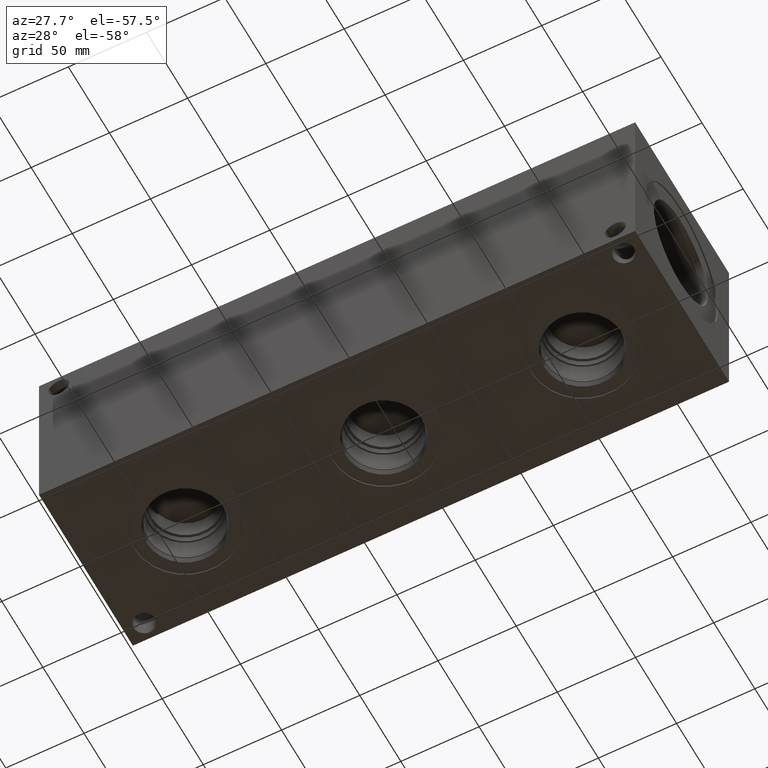
[diagram: clean part render]
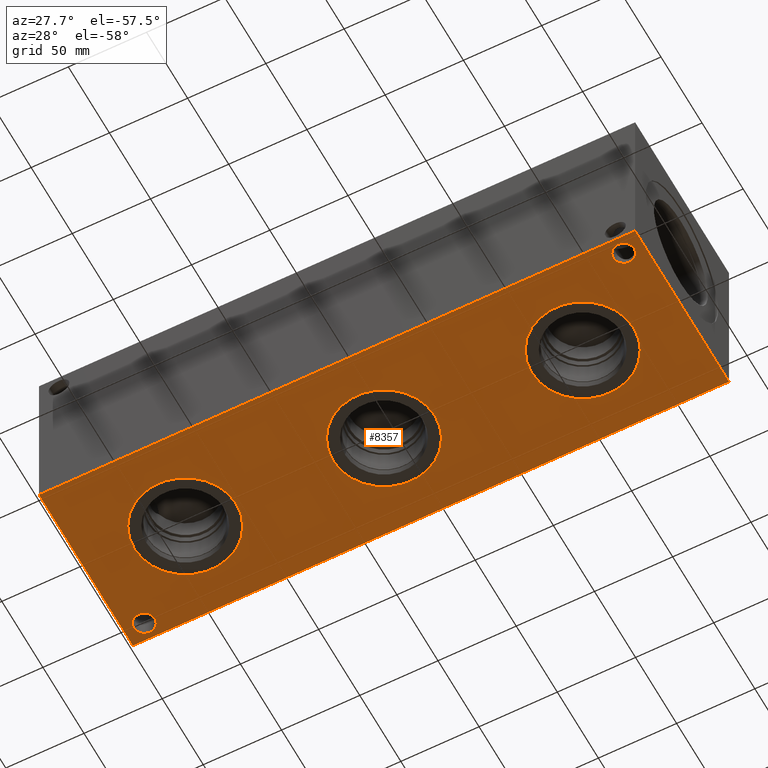
[diagram: same view with one face highlighted and labeled with its STEP entity id]
A machine part, auxiliary view. The second image highlights one B-rep face of the part: STEP entity #8357.
In plain terms, the highlighted planar face has unit normal (0, 0, 1).
Its self-contained STEP definition (entity closure, byte-faithful):
#112=CIRCLE('',#8607,32.5628);
#113=CIRCLE('',#8608,32.5628);
#123=CIRCLE('',#8623,32.5628);
#124=CIRCLE('',#8624,32.5628);
#158=CIRCLE('',#8681,32.5628);
#159=CIRCLE('',#8682,32.5628);
#174=CIRCLE('',#8716,6.7437);
#175=CIRCLE('',#8718,6.7437);
#324=FACE_BOUND('',#1541,.T.);
#325=FACE_BOUND('',#1542,.T.);
#326=FACE_BOUND('',#1543,.T.);
#327=FACE_BOUND('',#1544,.T.);
#328=FACE_BOUND('',#1545,.T.);
#1058=FACE_OUTER_BOUND('',#1540,.T.);
#1540=EDGE_LOOP('',(#7361,#7362,#7363,#7364));
#1541=EDGE_LOOP('',(#7365,#7366));
#1542=EDGE_LOOP('',(#7367,#7368));
#1543=EDGE_LOOP('',(#7369,#7370));
#1544=EDGE_LOOP('',(#7371));
#1545=EDGE_LOOP('',(#7372));
#2319=LINE('',#14384,#3100);
#2322=LINE('',#14389,#3103);
#2324=LINE('',#14393,#3105);
#2326=LINE('',#14396,#3107);
#3100=VECTOR('',#10631,10.);
#3103=VECTOR('',#10636,10.);
#3105=VECTOR('',#10640,10.);
#3107=VECTOR('',#10644,10.);
#3712=VERTEX_POINT('',#13750);
#3713=VERTEX_POINT('',#13751);
#3723=VERTEX_POINT('',#13781);
#3724=VERTEX_POINT('',#13782);
#3765=VERTEX_POINT('',#13960);
#3766=VERTEX_POINT('',#13961);
#3785=VERTEX_POINT('',#14025);
#3786=VERTEX_POINT('',#14029);
#3886=VERTEX_POINT('',#14382);
#3887=VERTEX_POINT('',#14383);
#3888=VERTEX_POINT('',#14388);
#3889=VERTEX_POINT('',#14392);
#4789=EDGE_CURVE('',#3712,#3713,#112,.T.);
#4790=EDGE_CURVE('',#3713,#3712,#113,.T.);
#4804=EDGE_CURVE('',#3723,#3724,#123,.T.);
#4805=EDGE_CURVE('',#3724,#3723,#124,.T.);
#4864=EDGE_CURVE('',#3765,#3766,#158,.T.);
#4865=EDGE_CURVE('',#3766,#3765,#159,.T.);
#4899=EDGE_CURVE('',#3785,#3785,#174,.T.);
#4901=EDGE_CURVE('',#3786,#3786,#175,.T.);
#5043=EDGE_CURVE('',#3886,#3887,#2319,.T.);
#5046=EDGE_CURVE('',#3888,#3886,#2322,.T.);
#5048=EDGE_CURVE('',#3889,#3888,#2324,.T.);
#5050=EDGE_CURVE('',#3887,#3889,#2326,.T.);
#7361=ORIENTED_EDGE('',*,*,#5050,.F.);
#7362=ORIENTED_EDGE('',*,*,#5043,.F.);
#7363=ORIENTED_EDGE('',*,*,#5046,.F.);
#7364=ORIENTED_EDGE('',*,*,#5048,.F.);
#7365=ORIENTED_EDGE('',*,*,#4789,.T.);
#7366=ORIENTED_EDGE('',*,*,#4790,.T.);
#7367=ORIENTED_EDGE('',*,*,#4804,.T.);
#7368=ORIENTED_EDGE('',*,*,#4805,.T.);
#7369=ORIENTED_EDGE('',*,*,#4864,.T.);
#7370=ORIENTED_EDGE('',*,*,#4865,.T.);
#7371=ORIENTED_EDGE('',*,*,#4899,.T.);
#7372=ORIENTED_EDGE('',*,*,#4901,.T.);
#7618=PLANE('',#8869);
#8357=ADVANCED_FACE('',(#1058,#324,#325,#326,#327,#328),#7618,.F.);
#8607=AXIS2_PLACEMENT_3D('',#13752,#10035,#10036);
#8608=AXIS2_PLACEMENT_3D('',#13753,#10037,#10038);
#8623=AXIS2_PLACEMENT_3D('',#13783,#10071,#10072);
#8624=AXIS2_PLACEMENT_3D('',#13784,#10073,#10074);
#8681=AXIS2_PLACEMENT_3D('',#13962,#10206,#10207);
#8682=AXIS2_PLACEMENT_3D('',#13963,#10208,#10209);
#8716=AXIS2_PLACEMENT_3D('',#14027,#10287,#10288);
#8718=AXIS2_PLACEMENT_3D('',#14031,#10292,#10293);
#8869=AXIS2_PLACEMENT_3D('',#14398,#10647,#10648);
#10035=DIRECTION('center_axis',(0.,0.,1.));
#10036=DIRECTION('ref_axis',(1.,0.,0.));
#10037=DIRECTION('center_axis',(0.,0.,1.));
#10038=DIRECTION('ref_axis',(1.,0.,0.));
#10071=DIRECTION('center_axis',(0.,0.,1.));
#10072=DIRECTION('ref_axis',(1.,0.,0.));
#10073=DIRECTION('center_axis',(0.,0.,1.));
#10074=DIRECTION('ref_axis',(1.,0.,0.));
#10206=DIRECTION('center_axis',(0.,0.,1.));
#10207=DIRECTION('ref_axis',(1.,0.,0.));
#10208=DIRECTION('center_axis',(0.,0.,1.));
#10209=DIRECTION('ref_axis',(1.,0.,0.));
#10287=DIRECTION('center_axis',(0.,0.,1.));
#10288=DIRECTION('ref_axis',(1.,0.,0.));
#10292=DIRECTION('center_axis',(0.,0.,1.));
#10293=DIRECTION('ref_axis',(1.,0.,0.));
#10631=DIRECTION('',(0.,-1.,0.));
#10636=DIRECTION('',(-1.,0.,0.));
#10640=DIRECTION('',(0.,1.,0.));
#10644=DIRECTION('',(1.,0.,0.));
#10647=DIRECTION('center_axis',(0.,0.,1.));
#10648=DIRECTION('ref_axis',(1.,0.,0.));
#13750=CARTESIAN_POINT('',(350.0628,57.15,0.));
#13751=CARTESIAN_POINT('',(284.9372,57.15,0.));
#13752=CARTESIAN_POINT('Origin',(317.5,57.15,0.));
#13753=CARTESIAN_POINT('Origin',(317.5,57.15,0.));
#13781=CARTESIAN_POINT('',(223.0628,57.15,0.));
#13782=CARTESIAN_POINT('',(157.9372,57.15,0.));
#13783=CARTESIAN_POINT('Origin',(190.5,57.15,0.));
#13784=CARTESIAN_POINT('Origin',(190.5,57.15,0.));
#13960=CARTESIAN_POINT('',(96.0628,57.15,0.));
#13961=CARTESIAN_POINT('',(30.9372,57.15,0.));
#13962=CARTESIAN_POINT('Origin',(63.5,57.15,0.));
#13963=CARTESIAN_POINT('Origin',(63.5,57.15,0.));
#14025=CARTESIAN_POINT('',(5.9563,103.9876,0.));
#14027=CARTESIAN_POINT('Origin',(12.7,103.9876,0.));
#14029=CARTESIAN_POINT('',(361.5563,10.3124,0.));
#14031=CARTESIAN_POINT('Origin',(368.3,10.3124,0.));
#14382=CARTESIAN_POINT('',(0.,114.3,0.));
#14383=CARTESIAN_POINT('',(0.,0.,0.));
#14384=CARTESIAN_POINT('',(0.,114.3,0.));
#14388=CARTESIAN_POINT('',(381.,114.3,0.));
#14389=CARTESIAN_POINT('',(381.,114.3,0.));
#14392=CARTESIAN_POINT('',(381.,0.,0.));
#14393=CARTESIAN_POINT('',(381.,0.,0.));
#14396=CARTESIAN_POINT('',(0.,0.,0.));
#14398=CARTESIAN_POINT('Origin',(190.5,57.15,0.));